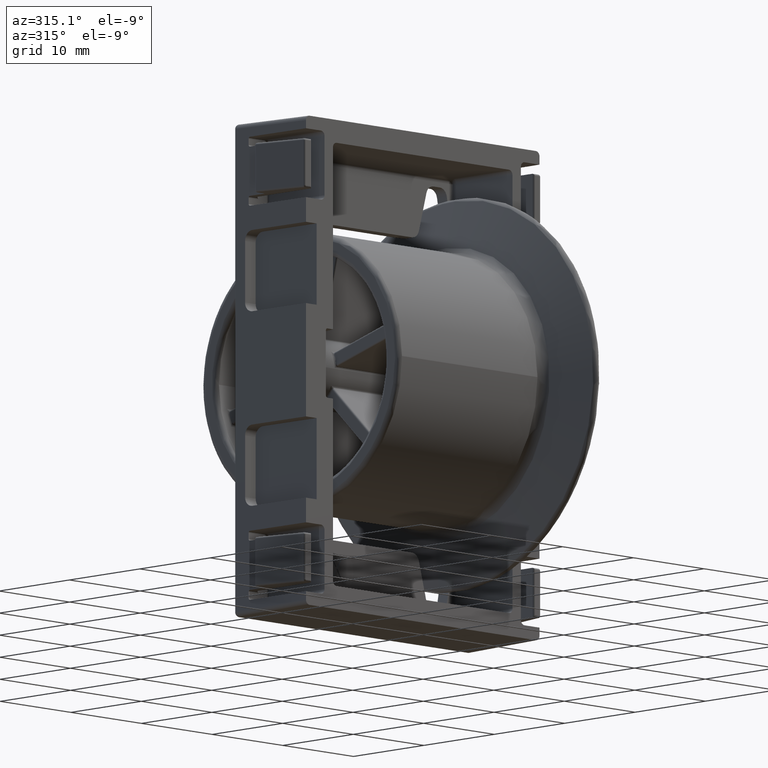
[diagram: clean part render]
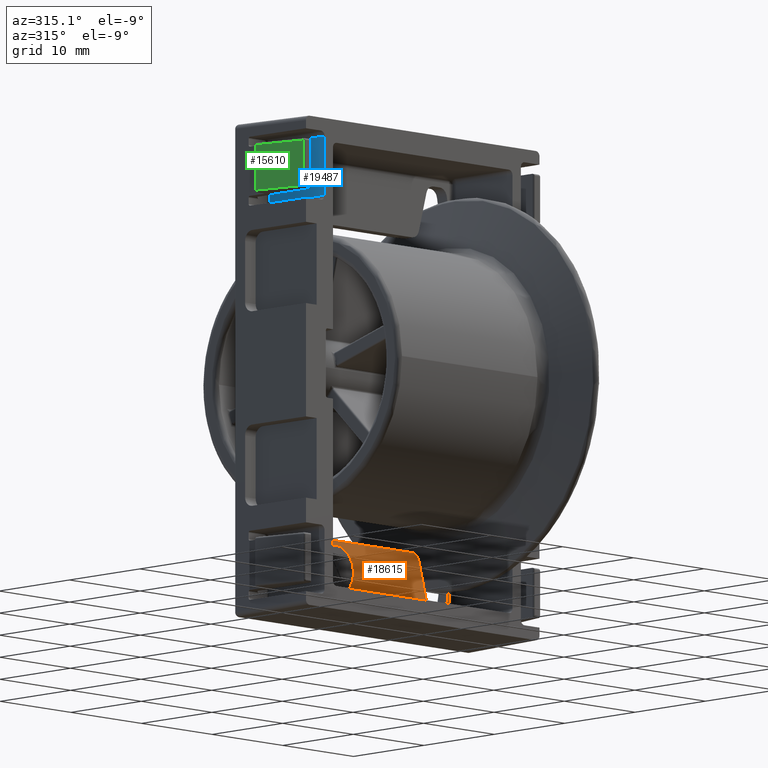
[diagram: same view with three faces highlighted in distinct colors, each labeled with its STEP entity id]
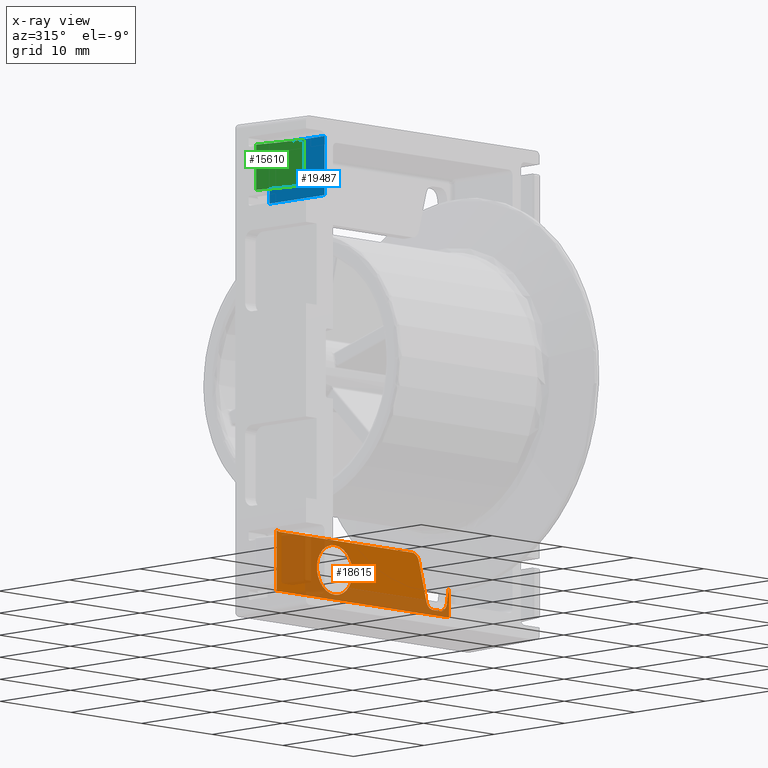
[diagram: x-ray of the same camera — body ghosted, the three highlighted faces saturated]
A machine part, auxiliary view with three faces highlighted in distinct colors.
The next image is the same camera in x-ray (body ghosted, the three faces saturated) — at least one of them is partly hidden behind the body in this view.
Their STEP definitions:

[orange] entity #18615 — the highlighted planar face has unit normal (0, 1, 0).
#123 = VECTOR ( 'NONE', #21446, 1000.000000000000100 ) ;
#301 = CARTESIAN_POINT ( 'NONE',  ( -12.19999999999999900, -1.500000000000000000, -22.00000000000000000 ) ) ;
#433 = ORIENTED_EDGE ( 'NONE', *, *, #26466, .F. ) ;
#586 = ORIENTED_EDGE ( 'NONE', *, *, #13768, .T. ) ;
#780 = CARTESIAN_POINT ( 'NONE',  ( 12.69999999999999900, -1.499999999999999600, -21.50000000000000000 ) ) ;
#859 = CARTESIAN_POINT ( 'NONE',  ( 7.924878279938971200, -1.499999999999999600, -16.74118095489749400 ) ) ;
#1093 = VECTOR ( 'NONE', #6568, 1000.000000000000000 ) ;
#1166 = VECTOR ( 'NONE', #19964, 1000.000000000000000 ) ;
#1471 = DIRECTION ( 'NONE',  ( 0.0000000000000000000, 0.0000000000000000000, 1.000000000000000000 ) ) ;
#1707 = AXIS2_PLACEMENT_3D ( 'NONE', #24531, #19963, #13004 ) ;
#1742 = CARTESIAN_POINT ( 'NONE',  ( -4.000000000000000000, -1.500000000000000000, -21.51409270978292900 ) ) ;
#1805 = CIRCLE ( 'NONE', #16221, 2.514092709782929500 ) ;
#3341 = CIRCLE ( 'NONE', #10252, 1.000000000000000900 ) ;
#3656 = DIRECTION ( 'NONE',  ( -0.2588190451025140800, 0.0000000000000000000, 0.9659258262890700900 ) ) ;
#3868 = CARTESIAN_POINT ( 'NONE',  ( 3.439092362731019900, -1.499999999999999600, -9.629649721936181500E-032 ) ) ;
#4009 = CARTESIAN_POINT ( 'NONE',  ( -4.000000000000000000, -1.500000000000000000, -19.00000000000000000 ) ) ;
#4407 = ORIENTED_EDGE ( 'NONE', *, *, #22484, .T. ) ;
#4603 = ORIENTED_EDGE ( 'NONE', *, *, #11734, .F. ) ;
#4781 = DIRECTION ( 'NONE',  ( 0.0000000000000000000, 0.0000000000000000000, 1.000000000000000000 ) ) ;
#4958 = CARTESIAN_POINT ( 'NONE',  ( -11.69999999999999900, -1.499999999999999600, -16.00000000000000000 ) ) ;
#5065 = VERTEX_POINT ( 'NONE', #301 ) ;
#5482 = ORIENTED_EDGE ( 'NONE', *, *, #13922, .T. ) ;
#5722 = VERTEX_POINT ( 'NONE', #13064 ) ;
#5739 = LINE ( 'NONE', #19973, #1093 ) ;
#6568 = DIRECTION ( 'NONE',  ( 0.0000000000000000000, -0.0000000000000000000, 1.000000000000000000 ) ) ;
#6924 = VECTOR ( 'NONE', #25297, 1000.000000000000000 ) ;
#7424 = DIRECTION ( 'NONE',  ( 0.0000000000000000000, 0.0000000000000000000, 1.000000000000000000 ) ) ;
#7838 = CIRCLE ( 'NONE', #12255, 1.000000000000000900 ) ;
#8042 = DIRECTION ( 'NONE',  ( -1.000000000000000000, 0.0000000000000000000, -0.0000000000000000000 ) ) ;
#8087 = CARTESIAN_POINT ( 'NONE',  ( -12.20000000000308300, -1.499999999995763600, -15.86602540378622600 ) ) ;
#8330 = ORIENTED_EDGE ( 'NONE', *, *, #18943, .T. ) ;
#8440 = VERTEX_POINT ( 'NONE', #24083 ) ;
#8712 = CARTESIAN_POINT ( 'NONE',  ( 10.89110197492619900, -1.499999999999999600, -21.50000000000000400 ) ) ;
#8930 = EDGE_LOOP ( 'NONE', ( #21922, #27528 ) ) ;
#9609 = LINE ( 'NONE', #3868, #26943 ) ;
#9881 = VERTEX_POINT ( 'NONE', #17623 ) ;
#9885 = DIRECTION ( 'NONE',  ( -0.0000000000000000000, -0.0000000000000000000, 1.000000000000000000 ) ) ;
#9970 = VERTEX_POINT ( 'NONE', #1742 ) ;
#10207 = VECTOR ( 'NONE', #9885, 1000.000000000000000 ) ;
#10252 = AXIS2_PLACEMENT_3D ( 'NONE', #13751, #20626, #4781 ) ;
#10569 = VECTOR ( 'NONE', #8042, 1000.000000000000000 ) ;
#10698 = VERTEX_POINT ( 'NONE', #17651 ) ;
#11068 = ORIENTED_EDGE ( 'NONE', *, *, #20396, .F. ) ;
#11734 = EDGE_CURVE ( 'NONE', #5065, #21152, #5739, .T. ) ;
#12143 = LINE ( 'NONE', #12397, #123 ) ;
#12255 = AXIS2_PLACEMENT_3D ( 'NONE', #12525, #14500, #14772 ) ;
#12397 = CARTESIAN_POINT ( 'NONE',  ( 11.73020160610350100, -1.499999999999997800, -21.50000000000000000 ) ) ;
#12470 = CARTESIAN_POINT ( 'NONE',  ( 9.967326987978971400, -1.499999999999999600, -21.50000000000000400 ) ) ;
#12525 = CARTESIAN_POINT ( 'NONE',  ( 10.89110197492619900, -1.499999999999999600, -20.50000000000000000 ) ) ;
#13004 = DIRECTION ( 'NONE',  ( 0.0000000000000000000, -0.0000000000000000000, 1.000000000000000000 ) ) ;
#13064 = CARTESIAN_POINT ( 'NONE',  ( 6.958952453649899900, -1.499999999999999600, -16.00000000000000000 ) ) ;
#13464 = EDGE_CURVE ( 'NONE', #9881, #15960, #9609, .T. ) ;
#13751 = CARTESIAN_POINT ( 'NONE',  ( 6.958952453649899900, -1.499999999999999600, -17.00000000000000000 ) ) ;
#13768 = EDGE_CURVE ( 'NONE', #21328, #24640, #7838, .T. ) ;
#13922 = EDGE_CURVE ( 'NONE', #14423, #9881, #19849, .T. ) ;
#14046 = ORIENTED_EDGE ( 'NONE', *, *, #23000, .F. ) ;
#14078 = EDGE_CURVE ( 'NONE', #9970, #10698, #1805, .T. ) ;
#14376 = ORIENTED_EDGE ( 'NONE', *, *, #20315, .F. ) ;
#14423 = VERTEX_POINT ( 'NONE', #12470 ) ;
#14500 = DIRECTION ( 'NONE',  ( 0.0000000000000000000, 1.000000000000000000, 0.0000000000000000000 ) ) ;
#14772 = DIRECTION ( 'NONE',  ( 0.0000000000000000000, 0.0000000000000000000, 1.000000000000000000 ) ) ;
#15040 = CARTESIAN_POINT ( 'NONE',  ( 11.87590972793842800, -1.499999999999998200, -20.67364817766691900 ) ) ;
#15567 = EDGE_CURVE ( 'NONE', #8440, #25142, #24760, .T. ) ;
#15691 = DIRECTION ( 'NONE',  ( 0.0000000000000000000, 0.0000000000000000000, -1.000000000000000000 ) ) ;
#15729 = AXIS2_PLACEMENT_3D ( 'NONE', #18687, #25486, #7424 ) ;
#15960 = VERTEX_POINT ( 'NONE', #859 ) ;
#16221 = AXIS2_PLACEMENT_3D ( 'NONE', #4009, #28830, #1471 ) ;
#16571 = LINE ( 'NONE', #16816, #10569 ) ;
#16816 = CARTESIAN_POINT ( 'NONE',  ( 12.69999999999999900, -1.499999999999999600, -16.00000000000000000 ) ) ;
#17043 = LINE ( 'NONE', #24327, #1166 ) ;
#17623 = CARTESIAN_POINT ( 'NONE',  ( 9.001401161689894800, -1.499999999999999600, -20.75881904510250900 ) ) ;
#17651 = CARTESIAN_POINT ( 'NONE',  ( -4.000000000000000000, -1.500000000000000000, -16.48590729021707100 ) ) ;
#17887 = DIRECTION ( 'NONE',  ( 0.0000000000000000000, 0.0000000000000000000, -1.000000000000000000 ) ) ;
#17996 = CARTESIAN_POINT ( 'NONE',  ( -11.70000000000000100, -1.499999999999999600, -15.00000000000000000 ) ) ;
#18408 = EDGE_LOOP ( 'NONE', ( #4603, #11068, #28186, #433, #586, #8330, #5482, #26276, #14376, #4407, #14046 ) ) ;
#18583 = FACE_BOUND ( 'NONE', #8930, .T. ) ;
#18615 = ADVANCED_FACE ( 'NONE', ( #18583, #20395 ), #26561, .F. ) ;
#18687 = CARTESIAN_POINT ( 'NONE',  ( -4.000000000000000000, -1.500000000000000000, -19.00000000000000000 ) ) ;
#18943 = EDGE_CURVE ( 'NONE', #24640, #14423, #21080, .T. ) ;
#19849 = CIRCLE ( 'NONE', #21958, 1.000000000000000900 ) ;
#19963 = DIRECTION ( 'NONE',  ( 0.0000000000000000000, 1.000000000000000000, 0.0000000000000000000 ) ) ;
#19964 = DIRECTION ( 'NONE',  ( -1.000000000000000000, -0.0000000000000000000, 0.0000000000000000000 ) ) ;
#19973 = CARTESIAN_POINT ( 'NONE',  ( -12.19999999999999900, -1.500000000000000000, 0.0000000000000000000 ) ) ;
#20134 = CARTESIAN_POINT ( 'NONE',  ( 12.20000000000000300, -1.499999999999999600, -18.83564090980906500 ) ) ;
#20315 = EDGE_CURVE ( 'NONE', #5722, #15960, #3341, .T. ) ;
#20383 = CARTESIAN_POINT ( 'NONE',  ( 9.967326987978969700, -1.499999999999999600, -20.50000000000000000 ) ) ;
#20395 = FACE_OUTER_BOUND ( 'NONE', #18408, .T. ) ;
#20396 = EDGE_CURVE ( 'NONE', #8440, #5065, #17043, .T. ) ;
#20626 = DIRECTION ( 'NONE',  ( 0.0000000000000000000, 1.000000000000000000, 0.0000000000000000000 ) ) ;
#21080 = LINE ( 'NONE', #780, #6924 ) ;
#21152 = VERTEX_POINT ( 'NONE', #8087 ) ;
#21328 = VERTEX_POINT ( 'NONE', #15040 ) ;
#21446 = DIRECTION ( 'NONE',  ( 0.1736481776669240000, 0.0000000000000000000, 0.9848077530122091300 ) ) ;
#21922 = ORIENTED_EDGE ( 'NONE', *, *, #28193, .F. ) ;
#21958 = AXIS2_PLACEMENT_3D ( 'NONE', #20383, #29347, #17887 ) ;
#22484 = EDGE_CURVE ( 'NONE', #5722, #25194, #16571, .T. ) ;
#23000 = EDGE_CURVE ( 'NONE', #21152, #25194, #27510, .T. ) ;
#23458 = CARTESIAN_POINT ( 'NONE',  ( 12.19999999999999900, -1.500000000000000000, 0.0000000000000000000 ) ) ;
#24083 = CARTESIAN_POINT ( 'NONE',  ( 12.19999999999999900, -1.500000000000000000, -22.00000000000000000 ) ) ;
#24327 = CARTESIAN_POINT ( 'NONE',  ( 0.0000000000000000000, -1.500000000000000000, -22.00000000000000000 ) ) ;
#24531 = CARTESIAN_POINT ( 'NONE',  ( 0.0000000000000000000, -1.500000000000000000, 0.0000000000000000000 ) ) ;
#24640 = VERTEX_POINT ( 'NONE', #8712 ) ;
#24654 = DIRECTION ( 'NONE',  ( 0.0000000000000000000, -1.000000000000000000, 0.0000000000000000000 ) ) ;
#24760 = LINE ( 'NONE', #23458, #10207 ) ;
#25142 = VERTEX_POINT ( 'NONE', #20134 ) ;
#25194 = VERTEX_POINT ( 'NONE', #4958 ) ;
#25297 = DIRECTION ( 'NONE',  ( -1.000000000000000000, 0.0000000000000000000, -9.912705577010320600E-016 ) ) ;
#25486 = DIRECTION ( 'NONE',  ( -0.0000000000000000000, -1.000000000000000000, -0.0000000000000000000 ) ) ;
#26276 = ORIENTED_EDGE ( 'NONE', *, *, #13464, .T. ) ;
#26466 = EDGE_CURVE ( 'NONE', #21328, #25142, #12143, .T. ) ;
#26561 = PLANE ( 'NONE',  #1707 ) ;
#26943 = VECTOR ( 'NONE', #3656, 1000.000000000000000 ) ;
#27510 = CIRCLE ( 'NONE', #28304, 1.000000000000000900 ) ;
#27528 = ORIENTED_EDGE ( 'NONE', *, *, #14078, .F. ) ;
#28186 = ORIENTED_EDGE ( 'NONE', *, *, #15567, .T. ) ;
#28193 = EDGE_CURVE ( 'NONE', #10698, #9970, #28222, .T. ) ;
#28222 = CIRCLE ( 'NONE', #15729, 2.514092709782929500 ) ;
#28304 = AXIS2_PLACEMENT_3D ( 'NONE', #17996, #24654, #15691 ) ;
#28830 = DIRECTION ( 'NONE',  ( -0.0000000000000000000, -1.000000000000000000, -0.0000000000000000000 ) ) ;
#29347 = DIRECTION ( 'NONE',  ( -0.0000000000000000000, 1.000000000000000000, -0.0000000000000000000 ) ) ;

[blue] entity #19487 — the highlighted planar face has unit normal (1, -0, 0).
#334 = LINE ( 'NONE', #14716, #17328 ) ;
#844 = FACE_OUTER_BOUND ( 'NONE', #2193, .T. ) ;
#901 = VERTEX_POINT ( 'NONE', #7320 ) ;
#923 = EDGE_CURVE ( 'NONE', #13961, #19492, #7922, .T. ) ;
#1631 = DIRECTION ( 'NONE',  ( 0.0000000000000000000, 1.000000000000000000, 0.0000000000000000000 ) ) ;
#2193 = EDGE_LOOP ( 'NONE', ( #8609, #11884, #28392, #10624 ) ) ;
#3642 = CARTESIAN_POINT ( 'NONE',  ( -13.89999999999999900, -9.999999999999998200, 17.00000000000000000 ) ) ;
#4475 = AXIS2_PLACEMENT_3D ( 'NONE', #19010, #12258, #12447 ) ;
#6051 = CARTESIAN_POINT ( 'NONE',  ( -13.90000000000000000, -10.00000000000000000, 0.0000000000000000000 ) ) ;
#7320 = CARTESIAN_POINT ( 'NONE',  ( -13.89999999999999900, -2.199999999999999700, 17.00000000000000000 ) ) ;
#7922 = LINE ( 'NONE', #9552, #25243 ) ;
#8254 = CARTESIAN_POINT ( 'NONE',  ( -13.90000000000000000, -2.199999999999999700, 23.00000000000000000 ) ) ;
#8609 = ORIENTED_EDGE ( 'NONE', *, *, #9237, .F. ) ;
#8729 = CARTESIAN_POINT ( 'NONE',  ( -13.90000000000000000, -2.199999999999999700, 23.00000000000000000 ) ) ;
#9237 = EDGE_CURVE ( 'NONE', #901, #13961, #23806, .T. ) ;
#9552 = CARTESIAN_POINT ( 'NONE',  ( -13.90000000000000000, 7.539230729988330100, 23.00000000000000000 ) ) ;
#10624 = ORIENTED_EDGE ( 'NONE', *, *, #923, .F. ) ;
#11884 = ORIENTED_EDGE ( 'NONE', *, *, #14526, .F. ) ;
#12093 = DIRECTION ( 'NONE',  ( -0.0000000000000000000, -1.000000000000000000, -0.0000000000000000000 ) ) ;
#12258 = DIRECTION ( 'NONE',  ( 1.000000000000000000, -0.0000000000000000000, 2.891205793294679800E-016 ) ) ;
#12447 = DIRECTION ( 'NONE',  ( 2.891205793294679800E-016, 0.0000000000000000000, -1.000000000000000000 ) ) ;
#13961 = VERTEX_POINT ( 'NONE', #8729 ) ;
#14526 = EDGE_CURVE ( 'NONE', #23305, #901, #334, .T. ) ;
#14716 = CARTESIAN_POINT ( 'NONE',  ( -13.89999999999999900, 7.539230729988330100, 17.00000000000000000 ) ) ;
#15508 = LINE ( 'NONE', #6051, #28617 ) ;
#16707 = PLANE ( 'NONE',  #4475 ) ;
#17328 = VECTOR ( 'NONE', #1631, 1000.000000000000000 ) ;
#17797 = VECTOR ( 'NONE', #23871, 1000.000000000000000 ) ;
#18919 = CARTESIAN_POINT ( 'NONE',  ( -13.90000000000000000, -9.999999999999998200, 23.00000000000000000 ) ) ;
#19010 = CARTESIAN_POINT ( 'NONE',  ( -13.90000000000000000, 7.539230729988330100, 23.00000000000000000 ) ) ;
#19487 = ADVANCED_FACE ( 'NONE', ( #844 ), #16707, .F. ) ;
#19492 = VERTEX_POINT ( 'NONE', #18919 ) ;
#21939 = DIRECTION ( 'NONE',  ( 0.0000000000000000000, -0.0000000000000000000, 1.000000000000000000 ) ) ;
#22128 = EDGE_CURVE ( 'NONE', #23305, #19492, #15508, .T. ) ;
#23305 = VERTEX_POINT ( 'NONE', #3642 ) ;
#23806 = LINE ( 'NONE', #8254, #17797 ) ;
#23871 = DIRECTION ( 'NONE',  ( -2.891205793294679800E-016, -0.0000000000000000000, 1.000000000000000000 ) ) ;
#25243 = VECTOR ( 'NONE', #12093, 1000.000000000000000 ) ;
#28392 = ORIENTED_EDGE ( 'NONE', *, *, #22128, .T. ) ;
#28617 = VECTOR ( 'NONE', #21939, 1000.000000000000000 ) ;

[green] entity #15610 — the highlighted planar face has unit normal (-0.9766, -0.2152, 0).
#3 = VERTEX_POINT ( 'NONE', #3429 ) ;
#582 = VERTEX_POINT ( 'NONE', #19074 ) ;
#873 = LINE ( 'NONE', #23052, #28090 ) ;
#2677 = EDGE_LOOP ( 'NONE', ( #24010, #12057, #20450, #7885 ) ) ;
#3429 = CARTESIAN_POINT ( 'NONE',  ( -16.73458539693743300, -9.843035506207323600, 17.69999999999999900 ) ) ;
#5070 = CARTESIAN_POINT ( 'NONE',  ( -16.73458539693741500, -9.843035506207325400, -31.04152298679730000 ) ) ;
#6163 = CARTESIAN_POINT ( 'NONE',  ( -17.94644980371704800, -4.343035506207324500, 17.70000000000000600 ) ) ;
#7144 = AXIS2_PLACEMENT_3D ( 'NONE', #21866, #12716, #12431 ) ;
#7885 = ORIENTED_EDGE ( 'NONE', *, *, #20785, .F. ) ;
#8787 = VERTEX_POINT ( 'NONE', #6163 ) ;
#9785 = VERTEX_POINT ( 'NONE', #10210 ) ;
#9801 = VECTOR ( 'NONE', #13077, 1000.000000000000000 ) ;
#10210 = CARTESIAN_POINT ( 'NONE',  ( -17.94644980371704400, -4.343035506207322700, 22.29999999999999700 ) ) ;
#10755 = EDGE_CURVE ( 'NONE', #3, #582, #23044, .T. ) ;
#12057 = ORIENTED_EDGE ( 'NONE', *, *, #18985, .F. ) ;
#12431 = DIRECTION ( 'NONE',  ( 0.2151775310366079700, -0.9765749485507958500, 0.0000000000000000000 ) ) ;
#12716 = DIRECTION ( 'NONE',  ( -0.9765749485507959600, -0.2151775310366080000, 0.0000000000000000000 ) ) ;
#12787 = LINE ( 'NONE', #14267, #16322 ) ;
#12820 = PLANE ( 'NONE',  #7144 ) ;
#13077 = DIRECTION ( 'NONE',  ( -0.0000000000000000000, -0.0000000000000000000, -1.000000000000000000 ) ) ;
#13676 = LINE ( 'NONE', #24499, #9801 ) ;
#14267 = CARTESIAN_POINT ( 'NONE',  ( -16.69998949315076300, -10.00004768493151100, 17.69999999999999900 ) ) ;
#15610 = ADVANCED_FACE ( 'NONE', ( #24019 ), #12820, .T. ) ;
#16322 = VECTOR ( 'NONE', #25533, 1000.000000000000100 ) ;
#16974 = VECTOR ( 'NONE', #27236, 1000.000000000000000 ) ;
#17360 = EDGE_CURVE ( 'NONE', #9785, #8787, #13676, .T. ) ;
#18985 = EDGE_CURVE ( 'NONE', #9785, #582, #873, .T. ) ;
#19074 = CARTESIAN_POINT ( 'NONE',  ( -16.73458539693743000, -9.843035506207325400, 22.30000000000000100 ) ) ;
#20450 = ORIENTED_EDGE ( 'NONE', *, *, #17360, .T. ) ;
#20785 = EDGE_CURVE ( 'NONE', #3, #8787, #12787, .T. ) ;
#21866 = CARTESIAN_POINT ( 'NONE',  ( -18.00000000000000400, -4.099999999999999600, -31.04152298679730000 ) ) ;
#23044 = LINE ( 'NONE', #5070, #16974 ) ;
#23052 = CARTESIAN_POINT ( 'NONE',  ( -16.76018127397265900, -9.726869602739761000, 22.30000000000000100 ) ) ;
#24010 = ORIENTED_EDGE ( 'NONE', *, *, #10755, .T. ) ;
#24019 = FACE_OUTER_BOUND ( 'NONE', #2677, .T. ) ;
#24499 = CARTESIAN_POINT ( 'NONE',  ( -17.94644980371703400, -4.343035506207327100, -31.04152298679730000 ) ) ;
#25257 = DIRECTION ( 'NONE',  ( 0.2151775310366079700, -0.9765749485507958500, 5.742669455260779500E-016 ) ) ;
#25533 = DIRECTION ( 'NONE',  ( -0.2151775310366079700, 0.9765749485507958500, 1.148533891052160000E-015 ) ) ;
#27236 = DIRECTION ( 'NONE',  ( 0.0000000000000000000, 0.0000000000000000000, 1.000000000000000000 ) ) ;
#28090 = VECTOR ( 'NONE', #25257, 1000.000000000000100 ) ;